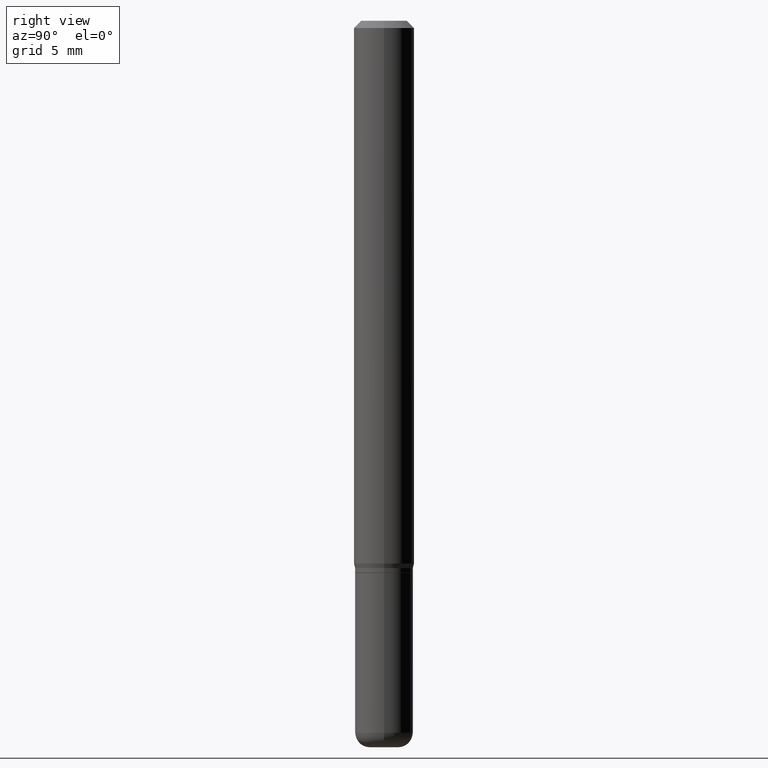
[diagram: clean part render]
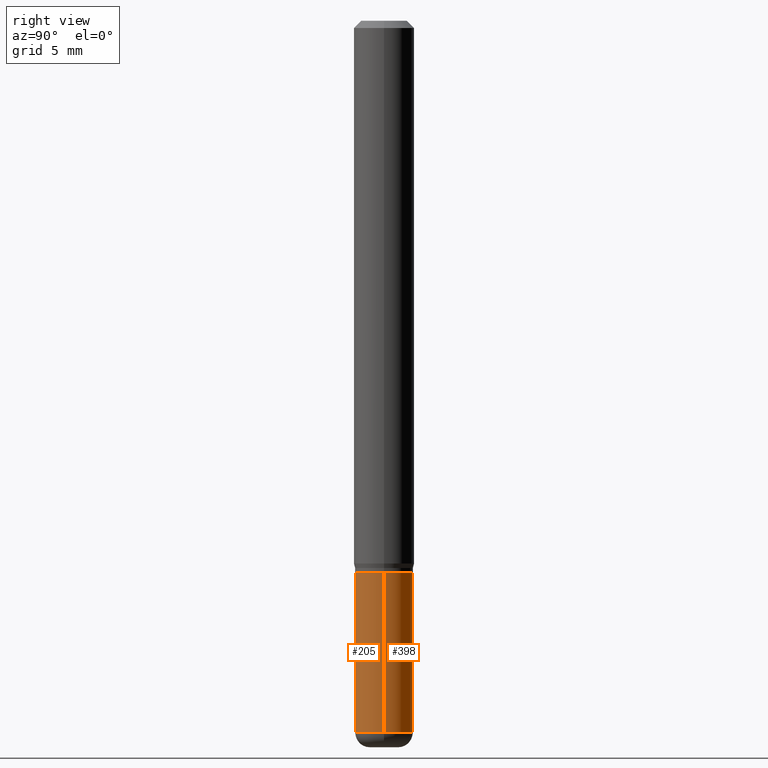
[diagram: same view with one multi-face feature highlighted, each face labeled with its STEP entity id]
A machine part, right view. The highlighted faces form ONE feature: a constant-radius fillet chain: 2 tangent blend faces with common blend radius 1.524 mm. The faces share edges in the B-rep.
Their STEP definitions:
[1] entity #398 (Cylinder):
#2 = EDGE_CURVE ( 'NONE', #246, #95, #270, .T. ) ;
#19 = EDGE_LOOP ( 'NONE', ( #210, #132, #257, #181 ) ) ;
#28 = CARTESIAN_POINT ( 'NONE',  ( 0.06000000000000010880, -5.551455328760601441E-15, -1.470000000000000195 ) ) ;
#29 = VERTEX_POINT ( 'NONE', #28 ) ;
#57 = DIRECTION ( 'NONE',  ( 1.000000000000000000, -6.982962677686268288E-15, 0.000000000000000000 ) ) ;
#64 = AXIS2_PLACEMENT_3D ( 'NONE', #409, #374, #456 ) ;
#69 = DIRECTION ( 'NONE',  ( 1.000000000000000000, -6.982962677686272233E-15, 0.000000000000000000 ) ) ;
#78 = CARTESIAN_POINT ( 'NONE',  ( 0.06000000000000006023, -4.189777606611764365E-16, 2.925706065477564208E-30 ) ) ;
#95 = VERTEX_POINT ( 'NONE', #281 ) ;
#97 = CYLINDRICAL_SURFACE ( 'NONE', #64, 0.06000000000000006023 ) ;
#110 = LINE ( 'NONE', #78, #370 ) ;
#115 = CARTESIAN_POINT ( 'NONE',  ( 0.05999999999999999778, -4.399266486942362543E-15, -1.140000000000000124 ) ) ;
#128 = EDGE_CURVE ( 'NONE', #29, #201, #110, .T. ) ;
#132 = ORIENTED_EDGE ( 'NONE', *, *, #2, .T. ) ;
#137 = EDGE_CURVE ( 'NONE', #29, #246, #249, .T. ) ;
#181 = ORIENTED_EDGE ( 'NONE', *, *, #128, .F. ) ;
#196 = DIRECTION ( 'NONE',  ( -2.445468806185136597E-29, 3.491481338843145583E-15, 1.000000000000000000 ) ) ;
#201 = VERTEX_POINT ( 'NONE', #115 ) ;
#210 = ORIENTED_EDGE ( 'NONE', *, *, #137, .T. ) ;
#228 = CIRCLE ( 'NONE', #414, 0.05999999999999999778 ) ;
#243 = EDGE_CURVE ( 'NONE', #201, #95, #228, .T. ) ;
#246 = VERTEX_POINT ( 'NONE', #369 ) ;
#249 = CIRCLE ( 'NONE', #362, 0.06000000000000010880 ) ;
#253 = CARTESIAN_POINT ( 'NONE',  ( 2.787834439051055989E-29, -3.980288726281186698E-15, -1.140000000000000124 ) ) ;
#257 = ORIENTED_EDGE ( 'NONE', *, *, #243, .F. ) ;
#270 = LINE ( 'NONE', #271, #361 ) ;
#271 = CARTESIAN_POINT ( 'NONE',  ( -0.06000000000000006023, 4.263256414560605395E-16, -2.951361054152946216E-30 ) ) ;
#276 = DIRECTION ( 'NONE',  ( -2.445468806185136877E-29, 3.491481338843145188E-15, 1.000000000000000000 ) ) ;
#281 = CARTESIAN_POINT ( 'NONE',  ( -0.05999999999999999778, -4.130057505734245262E-15, -1.140000000000000124 ) ) ;
#360 = CARTESIAN_POINT ( 'NONE',  ( 3.594839145092150820E-29, -5.132477568099424807E-15, -1.470000000000000195 ) ) ;
#361 = VECTOR ( 'NONE', #381, 39.37007874015748143 ) ;
#362 = AXIS2_PLACEMENT_3D ( 'NONE', #360, #196, #69 ) ;
#369 = CARTESIAN_POINT ( 'NONE',  ( -0.06000000000000010880, -4.130057505734244473E-15, -1.470000000000000195 ) ) ;
#370 = VECTOR ( 'NONE', #276, 39.37007874015748143 ) ;
#374 = DIRECTION ( 'NONE',  ( -2.445468806185136597E-29, 3.491481338843145583E-15, 1.000000000000000000 ) ) ;
#375 = DIRECTION ( 'NONE',  ( -2.445468806185136597E-29, 3.491481338843145583E-15, 1.000000000000000000 ) ) ;
#377 = FACE_OUTER_BOUND ( 'NONE', #19, .T. ) ;
#381 = DIRECTION ( 'NONE',  ( -2.445468806185136877E-29, 3.491481338843145188E-15, 1.000000000000000000 ) ) ;
#398 = ADVANCED_FACE ( 'NONE', ( #377 ), #97, .T. ) ;
#409 = CARTESIAN_POINT ( 'NONE',  ( 0.000000000000000000, 0.000000000000000000, 0.000000000000000000 ) ) ;
#414 = AXIS2_PLACEMENT_3D ( 'NONE', #253, #375, #57 ) ;
#456 = DIRECTION ( 'NONE',  ( 1.000000000000000000, -6.982962677686266711E-15, 4.876176775795935232E-29 ) ) ;
[2] entity #205 (Cylinder):
#2 = EDGE_CURVE ( 'NONE', #246, #95, #270, .T. ) ;
#4 = CARTESIAN_POINT ( 'NONE',  ( 3.594839145092150820E-29, -5.132477568099424807E-15, -1.470000000000000195 ) ) ;
#8 = DIRECTION ( 'NONE',  ( 1.000000000000000000, -6.982962677686268288E-15, 0.000000000000000000 ) ) ;
#28 = CARTESIAN_POINT ( 'NONE',  ( 0.06000000000000010880, -5.551455328760601441E-15, -1.470000000000000195 ) ) ;
#29 = VERTEX_POINT ( 'NONE', #28 ) ;
#45 = CARTESIAN_POINT ( 'NONE',  ( 0.000000000000000000, 0.000000000000000000, 0.000000000000000000 ) ) ;
#55 = DIRECTION ( 'NONE',  ( 1.000000000000000000, -6.982962677686272233E-15, 0.000000000000000000 ) ) ;
#78 = CARTESIAN_POINT ( 'NONE',  ( 0.06000000000000006023, -4.189777606611764365E-16, 2.925706065477564208E-30 ) ) ;
#87 = CIRCLE ( 'NONE', #399, 0.05999999999999999778 ) ;
#95 = VERTEX_POINT ( 'NONE', #281 ) ;
#110 = LINE ( 'NONE', #78, #370 ) ;
#113 = DIRECTION ( 'NONE',  ( -2.445468806185136597E-29, 3.491481338843145583E-15, 1.000000000000000000 ) ) ;
#115 = CARTESIAN_POINT ( 'NONE',  ( 0.05999999999999999778, -4.399266486942362543E-15, -1.140000000000000124 ) ) ;
#125 = DIRECTION ( 'NONE',  ( -2.445468806185136597E-29, 3.491481338843145583E-15, 1.000000000000000000 ) ) ;
#128 = EDGE_CURVE ( 'NONE', #29, #201, #110, .T. ) ;
#201 = VERTEX_POINT ( 'NONE', #115 ) ;
#205 = ADVANCED_FACE ( 'NONE', ( #233 ), #479, .T. ) ;
#233 = FACE_OUTER_BOUND ( 'NONE', #335, .T. ) ;
#240 = AXIS2_PLACEMENT_3D ( 'NONE', #4, #125, #55 ) ;
#245 = CARTESIAN_POINT ( 'NONE',  ( 2.787834439051055989E-29, -3.980288726281186698E-15, -1.140000000000000124 ) ) ;
#246 = VERTEX_POINT ( 'NONE', #369 ) ;
#256 = EDGE_CURVE ( 'NONE', #246, #29, #378, .T. ) ;
#270 = LINE ( 'NONE', #271, #361 ) ;
#271 = CARTESIAN_POINT ( 'NONE',  ( -0.06000000000000006023, 4.263256414560605395E-16, -2.951361054152946216E-30 ) ) ;
#276 = DIRECTION ( 'NONE',  ( -2.445468806185136877E-29, 3.491481338843145188E-15, 1.000000000000000000 ) ) ;
#281 = CARTESIAN_POINT ( 'NONE',  ( -0.05999999999999999778, -4.130057505734245262E-15, -1.140000000000000124 ) ) ;
#282 = EDGE_CURVE ( 'NONE', #95, #201, #87, .T. ) ;
#296 = ORIENTED_EDGE ( 'NONE', *, *, #256, .T. ) ;
#335 = EDGE_LOOP ( 'NONE', ( #411, #296, #353, #504 ) ) ;
#353 = ORIENTED_EDGE ( 'NONE', *, *, #128, .T. ) ;
#361 = VECTOR ( 'NONE', #381, 39.37007874015748143 ) ;
#365 = DIRECTION ( 'NONE',  ( 1.000000000000000000, -6.982962677686266711E-15, 4.876176775795935232E-29 ) ) ;
#369 = CARTESIAN_POINT ( 'NONE',  ( -0.06000000000000010880, -4.130057505734244473E-15, -1.470000000000000195 ) ) ;
#370 = VECTOR ( 'NONE', #276, 39.37007874015748143 ) ;
#378 = CIRCLE ( 'NONE', #240, 0.06000000000000010880 ) ;
#381 = DIRECTION ( 'NONE',  ( -2.445468806185136877E-29, 3.491481338843145188E-15, 1.000000000000000000 ) ) ;
#399 = AXIS2_PLACEMENT_3D ( 'NONE', #245, #493, #8 ) ;
#411 = ORIENTED_EDGE ( 'NONE', *, *, #2, .F. ) ;
#451 = AXIS2_PLACEMENT_3D ( 'NONE', #45, #113, #365 ) ;
#479 = CYLINDRICAL_SURFACE ( 'NONE', #451, 0.06000000000000006023 ) ;
#493 = DIRECTION ( 'NONE',  ( -2.445468806185136597E-29, 3.491481338843145583E-15, 1.000000000000000000 ) ) ;
#504 = ORIENTED_EDGE ( 'NONE', *, *, #282, .F. ) ;